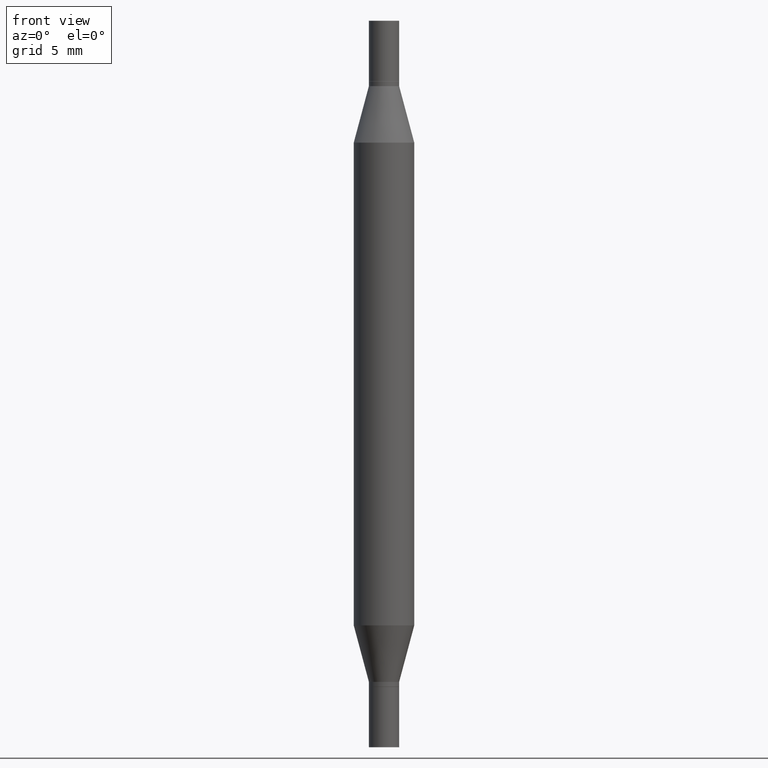
[diagram: clean part render]
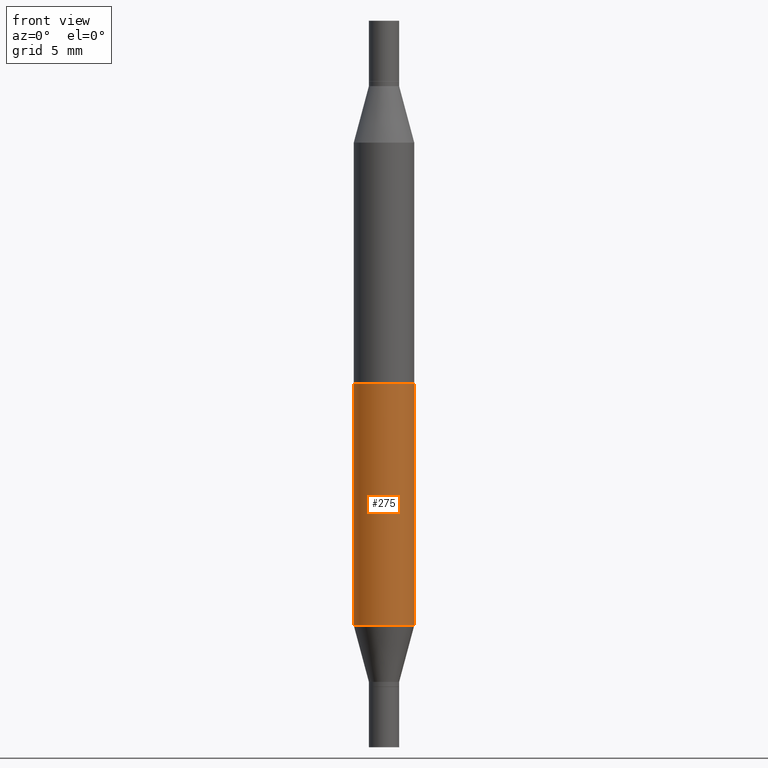
[diagram: same view with one face highlighted and labeled with its STEP entity id]
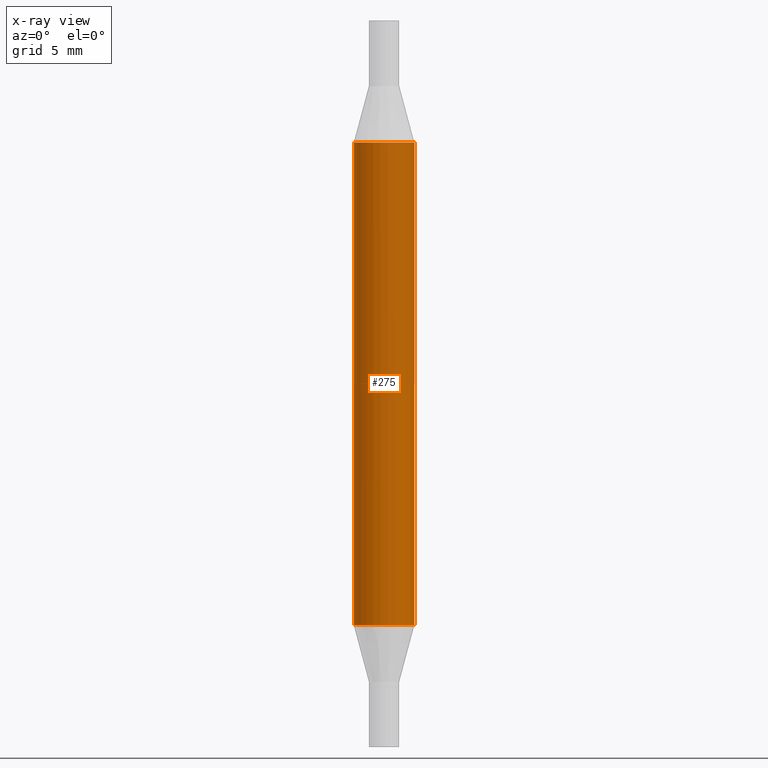
[diagram: x-ray of the same camera — body ghosted, the highlighted face saturated]
A machine part, front view. The second image highlights one B-rep face of the part: STEP entity #275.
The next image is the same camera in x-ray: the body ghosted, the highlighted face saturated — about 0% of this face is hidden behind the body in this view.
In plain terms, the highlighted cylindrical surface (edge-blend (fillet) strip) has radius 1.5875 mm, axis along (-0, -0, -1).
Its self-contained STEP definition (entity closure, byte-faithful):
#1 = EDGE_CURVE ( 'NONE', #288, #554, #208, .T. ) ;
#39 = DIRECTION ( 'NONE',  ( 1.000000000000000000, -6.982962677686266711E-15, 0.000000000000000000 ) ) ;
#44 = LINE ( 'NONE', #486, #612 ) ;
#60 = DIRECTION ( 'NONE',  ( 1.000000000000000000, -6.982962677686270655E-15, 0.000000000000000000 ) ) ;
#155 = CARTESIAN_POINT ( 'NONE',  ( 0.06250000000000000000, -5.673899992708591942E-15, -1.499999999999999556 ) ) ;
#158 = ORIENTED_EDGE ( 'NONE', *, *, #1, .T. ) ;
#208 = CIRCLE ( 'NONE', #224, 0.06250000000000000000 ) ;
#224 = AXIS2_PLACEMENT_3D ( 'NONE', #972, #225, #60 ) ;
#225 = DIRECTION ( 'NONE',  ( -2.445468806185136597E-29, 3.491481338843145583E-15, 1.000000000000000000 ) ) ;
#272 = CYLINDRICAL_SURFACE ( 'NONE', #306, 0.06250000000000000000 ) ;
#275 = ADVANCED_FACE ( 'NONE', ( #955 ), #272, .T. ) ;
#288 = VERTEX_POINT ( 'NONE', #469 ) ;
#291 = EDGE_CURVE ( 'NONE', #895, #554, #818, .T. ) ;
#306 = AXIS2_PLACEMENT_3D ( 'NONE', #666, #502, #812 ) ;
#312 = ORIENTED_EDGE ( 'NONE', *, *, #590, .F. ) ;
#321 = VECTOR ( 'NONE', #455, 39.37007874015748143 ) ;
#335 = CARTESIAN_POINT ( 'NONE',  ( 3.052858238161220135E-29, -8.783881839976021314E-16, -0.2516265877365266856 ) ) ;
#367 = CARTESIAN_POINT ( 'NONE',  ( 0.06250000000000000000, -1.314823351352993998E-15, -0.2516265877365266856 ) ) ;
#455 = DIRECTION ( 'NONE',  ( -2.445468806185136877E-29, -3.491805094961123683E-15, -1.000000000000000000 ) ) ;
#469 = CARTESIAN_POINT ( 'NONE',  ( -0.06250000000000000000, -2.189829879271637577E-15, -1.248373412263472870 ) ) ;
#486 = CARTESIAN_POINT ( 'NONE',  ( -0.06250000000000000000, -4.808683700492480339E-15, -1.499999999999999556 ) ) ;
#502 = DIRECTION ( 'NONE',  ( -2.445468806185136597E-29, -3.491805094961124077E-15, -1.000000000000000000 ) ) ;
#524 = ORIENTED_EDGE ( 'NONE', *, *, #551, .T. ) ;
#546 = AXIS2_PLACEMENT_3D ( 'NONE', #335, #788, #39 ) ;
#551 = EDGE_CURVE ( 'NONE', #786, #288, #44, .T. ) ;
#554 = VERTEX_POINT ( 'NONE', #783 ) ;
#560 = DIRECTION ( 'NONE',  ( -2.445468806185136877E-29, -3.491805094961123683E-15, -1.000000000000000000 ) ) ;
#590 = EDGE_CURVE ( 'NONE', #786, #895, #904, .T. ) ;
#612 = VECTOR ( 'NONE', #560, 39.37007874015748143 ) ;
#616 = ORIENTED_EDGE ( 'NONE', *, *, #291, .F. ) ;
#666 = CARTESIAN_POINT ( 'NONE',  ( 0.000000000000000000, -5.237464825353201062E-15, -1.499999999999999556 ) ) ;
#684 = EDGE_LOOP ( 'NONE', ( #312, #524, #158, #616 ) ) ;
#736 = CARTESIAN_POINT ( 'NONE',  ( -0.06250000000000000000, -4.496070591368817046E-16, -0.2516265877365266856 ) ) ;
#783 = CARTESIAN_POINT ( 'NONE',  ( 0.06250000000000000000, -4.795107640181248250E-15, -1.248373412263472870 ) ) ;
#786 = VERTEX_POINT ( 'NONE', #736 ) ;
#788 = DIRECTION ( 'NONE',  ( 2.445468806185136597E-29, 3.491805094961124077E-15, 1.000000000000000000 ) ) ;
#812 = DIRECTION ( 'NONE',  ( 1.000000000000000000, -6.982962677686262766E-15, 0.000000000000000000 ) ) ;
#818 = LINE ( 'NONE', #155, #321 ) ;
#895 = VERTEX_POINT ( 'NONE', #367 ) ;
#904 = CIRCLE ( 'NONE', #546, 0.06250000000000000000 ) ;
#955 = FACE_OUTER_BOUND ( 'NONE', #684, .T. ) ;
#972 = CARTESIAN_POINT ( 'NONE',  ( 3.052858238161220135E-29, -4.358672472825856581E-15, -1.248373412263472870 ) ) ;